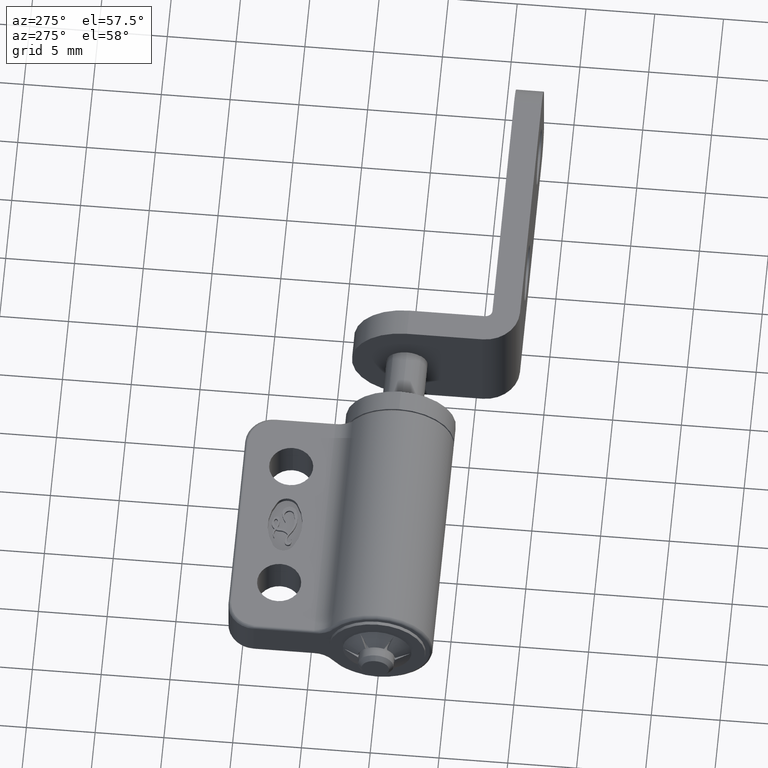
[diagram: clean part render]
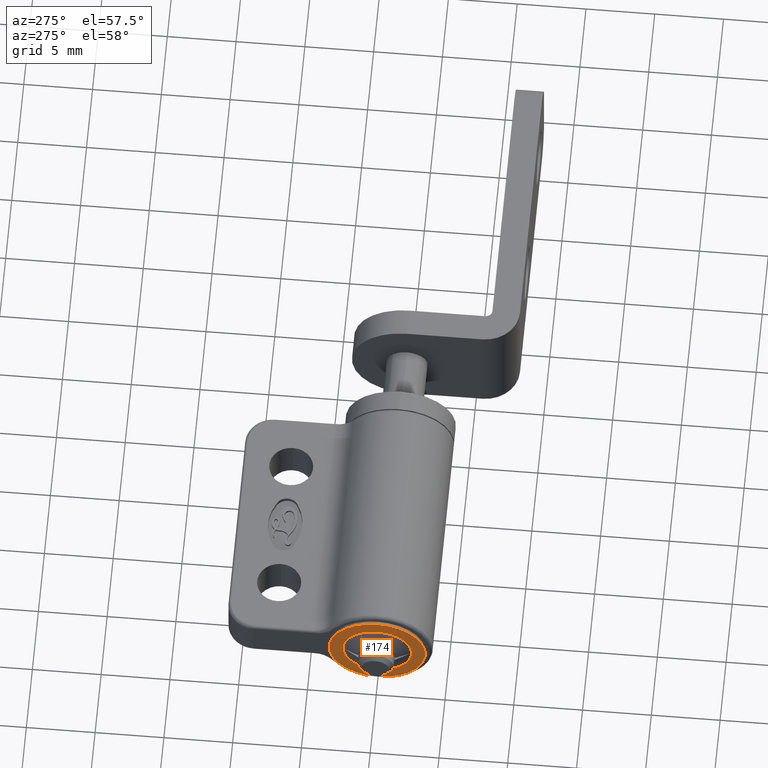
[diagram: same view with one face highlighted and labeled with its STEP entity id]
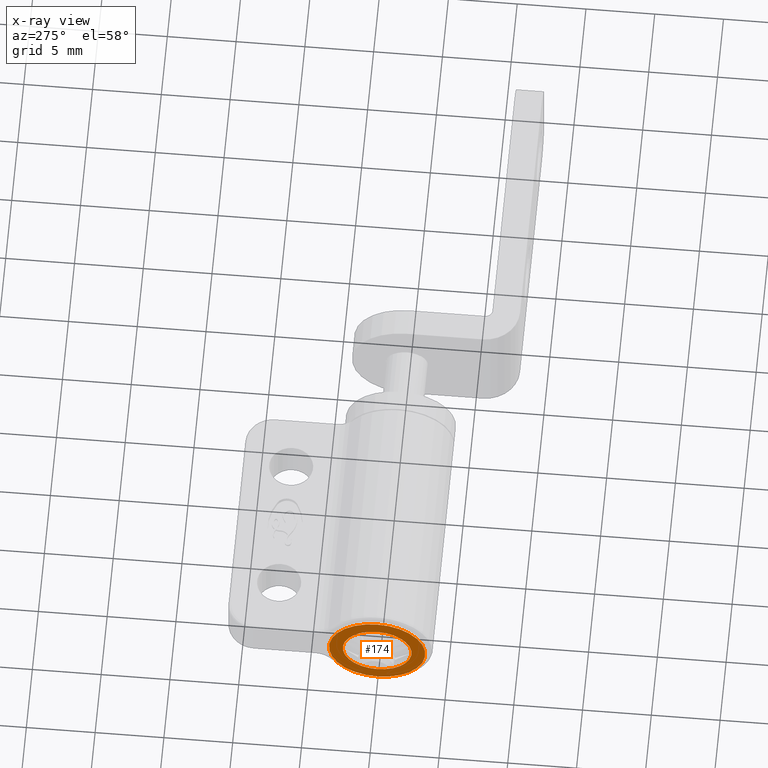
[diagram: x-ray of the same camera — body ghosted, the highlighted face saturated]
A machine part, auxiliary view. The second image highlights one B-rep face of the part: STEP entity #174.
The next image is the same camera in x-ray: the body ghosted, the highlighted face saturated — about 0% of this face is hidden behind the body in this view.
In plain terms, the highlighted planar face has unit normal (-1, -0, -0).
Its self-contained STEP definition (entity closure, byte-faithful):
#174=ADVANCED_FACE('',(#1569,#1570),#1568,.T.);
#1568=PLANE('',#2878);
#1569=FACE_OUTER_BOUND('',#2879,.T.);
#1570=FACE_BOUND('',#2880,.T.);
#2875=CARTESIAN_POINT('',(-9.25000000000E+00,7.27461339179E+00,-8.05000000000E+00));
#2876=DIRECTION('',(-1.00000000000E+00,-0.00000000000E+00,-3.52738685285E-21));
#2877=DIRECTION('',(0.00000000000E+00,-1.00000000000E+00,0.00000000000E+00));
#2878=AXIS2_PLACEMENT_3D('',#2875,#2876,#2877);
#2879=EDGE_LOOP('',(#3862,#3863));
#2880=EDGE_LOOP('',(#3864,#3865));
#3862=ORIENTED_EDGE('',*,*,#4519,.F.);
#3863=ORIENTED_EDGE('',*,*,#4520,.F.);
#3864=ORIENTED_EDGE('',*,*,#4521,.T.);
#3865=ORIENTED_EDGE('',*,*,#4522,.T.);
#4519=EDGE_CURVE('',#7393,#7394,#7395,.T.);
#4520=EDGE_CURVE('',#7394,#7393,#7401,.T.);
#4521=EDGE_CURVE('',#7407,#7408,#7409,.T.);
#4522=EDGE_CURVE('',#7408,#7407,#7415,.T.);
#7393=VERTEX_POINT('',#9532);
#7394=VERTEX_POINT('',#9533);
#7395=CIRCLE('',#9537,3.50000000000E+00);
#7401=CIRCLE('',#9541,3.50000000000E+00);
#7407=VERTEX_POINT('',#9542);
#7408=VERTEX_POINT('',#9543);
#7409=CIRCLE('',#9547,2.50000000000E+00);
#7415=CIRCLE('',#9551,2.50000000000E+00);
#9532=CARTESIAN_POINT('',(-9.25000000000E+00,4.44089209850E-16,-3.50000000000E+00));
#9533=CARTESIAN_POINT('',(-9.25000000000E+00,-1.41558637420E-20,3.50000000000E+00));
#9534=CARTESIAN_POINT('',(-9.25000000000E+00,0.00000000000E+00,-8.81846713212E-22));
#9535=DIRECTION('',(1.00000000000E+00,4.31980301869E-37,5.29023293979E-53));
#9536=DIRECTION('',(-0.00000000000E+00,-1.22464679915E-16,1.00000000000E+00));
#9537=AXIS2_PLACEMENT_3D('',#9534,#9535,#9536);
#9538=CARTESIAN_POINT('',(-9.25000000000E+00,0.00000000000E+00,-8.81846713212E-22));
#9539=DIRECTION('',(1.00000000000E+00,4.31980301869E-37,5.29023293979E-53));
#9540=DIRECTION('',(-0.00000000000E+00,-1.22464679915E-16,1.00000000000E+00));
#9541=AXIS2_PLACEMENT_3D('',#9538,#9539,#9540);
#9542=CARTESIAN_POINT('',(-9.25000000000E+00,-1.01113312438E-20,2.50000000000E+00));
#9543=CARTESIAN_POINT('',(-9.25000000000E+00,2.96059473233E-16,-2.50000000000E+00));
#9544=CARTESIAN_POINT('',(-9.25000000000E+00,0.00000000000E+00,-8.81846713212E-22));
#9545=DIRECTION('',(1.00000000000E+00,4.31980301869E-37,5.29023293979E-53));
#9546=DIRECTION('',(-0.00000000000E+00,-1.22464679915E-16,1.00000000000E+00));
#9547=AXIS2_PLACEMENT_3D('',#9544,#9545,#9546);
#9548=CARTESIAN_POINT('',(-9.25000000000E+00,0.00000000000E+00,-8.81846713212E-22));
#9549=DIRECTION('',(1.00000000000E+00,4.31980301869E-37,5.29023293979E-53));
#9550=DIRECTION('',(-0.00000000000E+00,-1.22464679915E-16,1.00000000000E+00));
#9551=AXIS2_PLACEMENT_3D('',#9548,#9549,#9550);